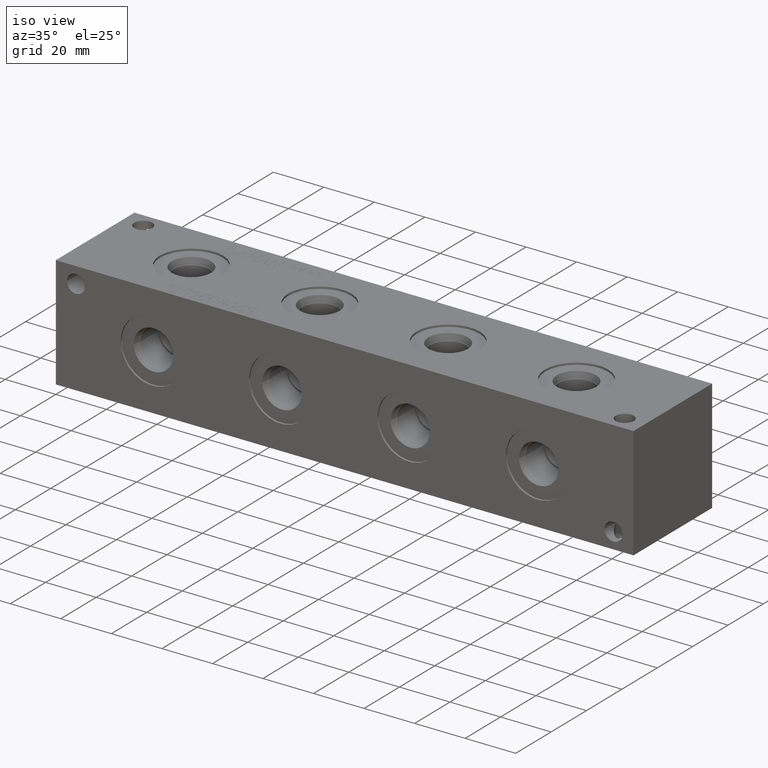
[diagram: clean part render]
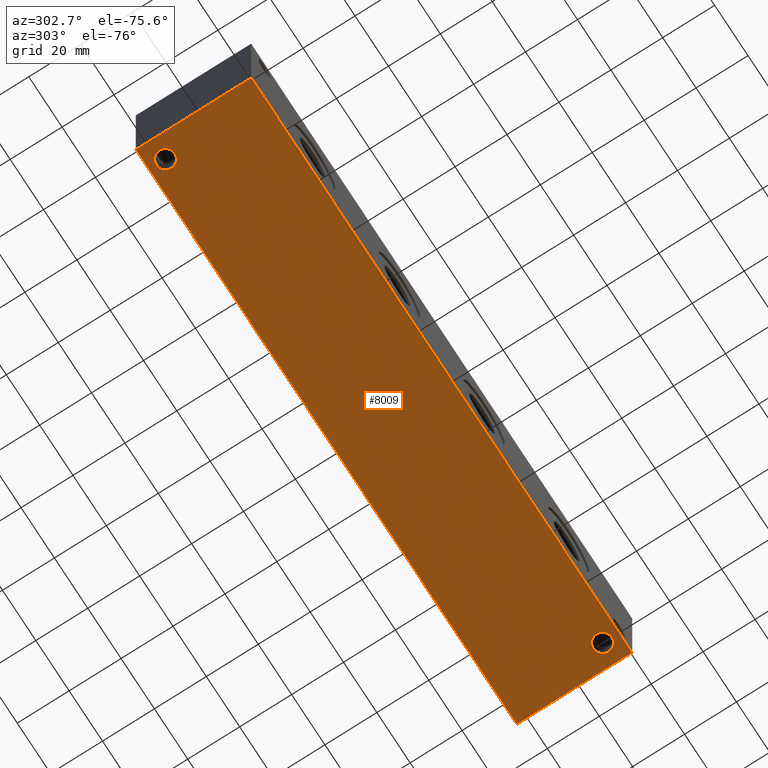
[diagram: tour spotlight — one face highlighted and labeled with its STEP entity id]
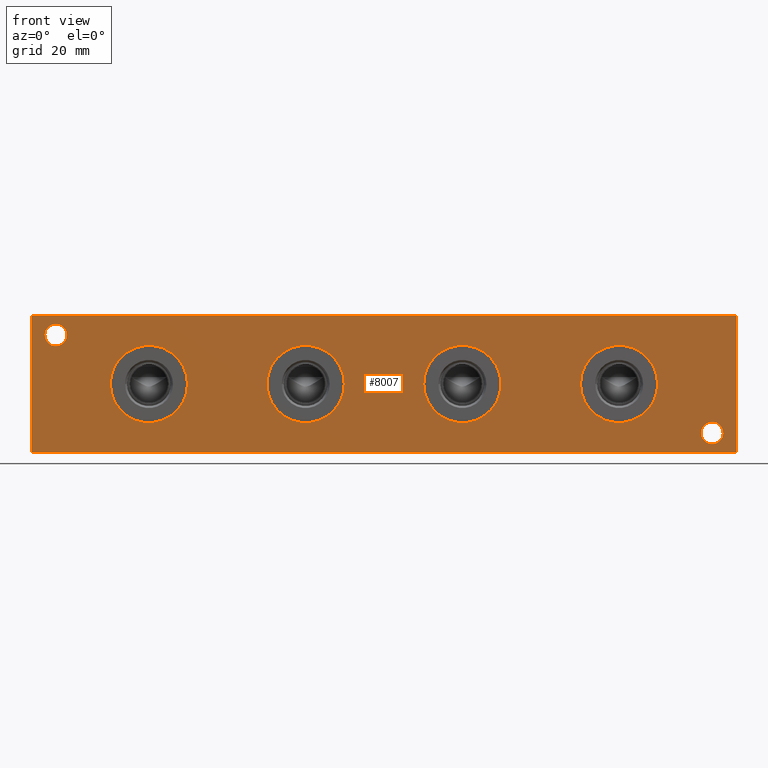
[diagram: tour spotlight — one face highlighted and labeled with its STEP entity id]
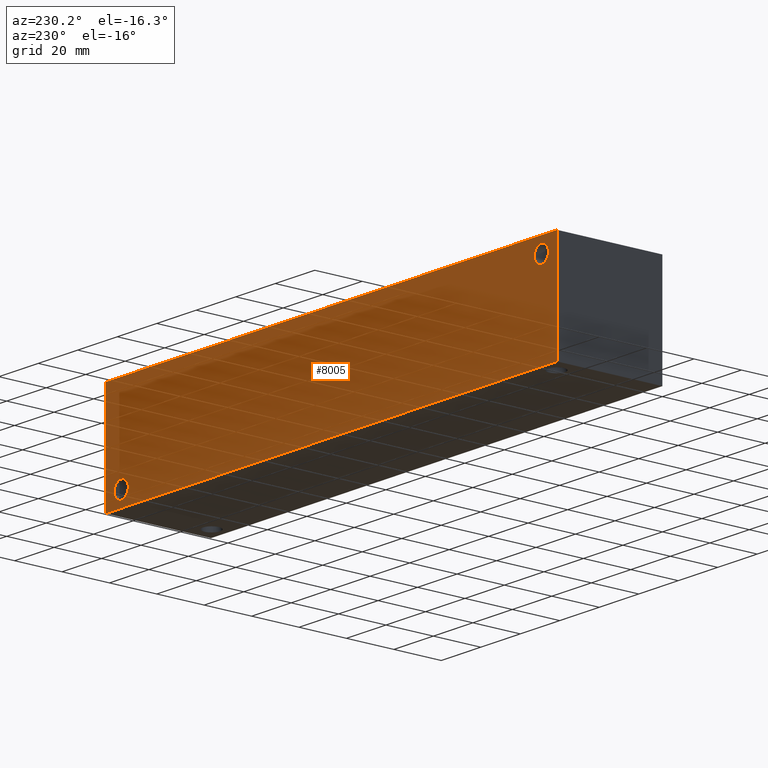
[diagram: tour spotlight — one face highlighted and labeled with its STEP entity id]
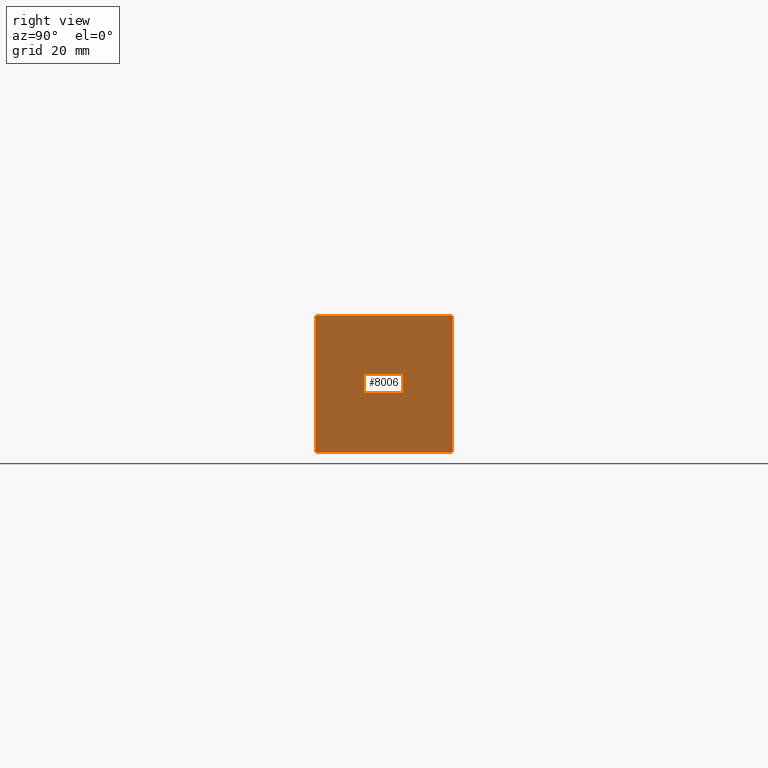
[diagram: tour spotlight — one face highlighted and labeled with its STEP entity id]
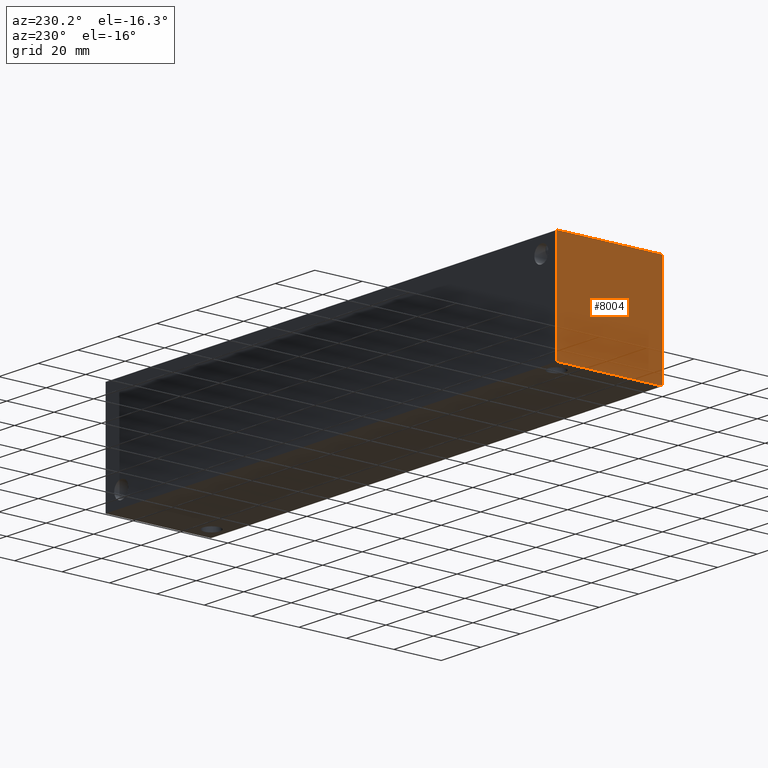
[diagram: tour spotlight — one face highlighted and labeled with its STEP entity id]
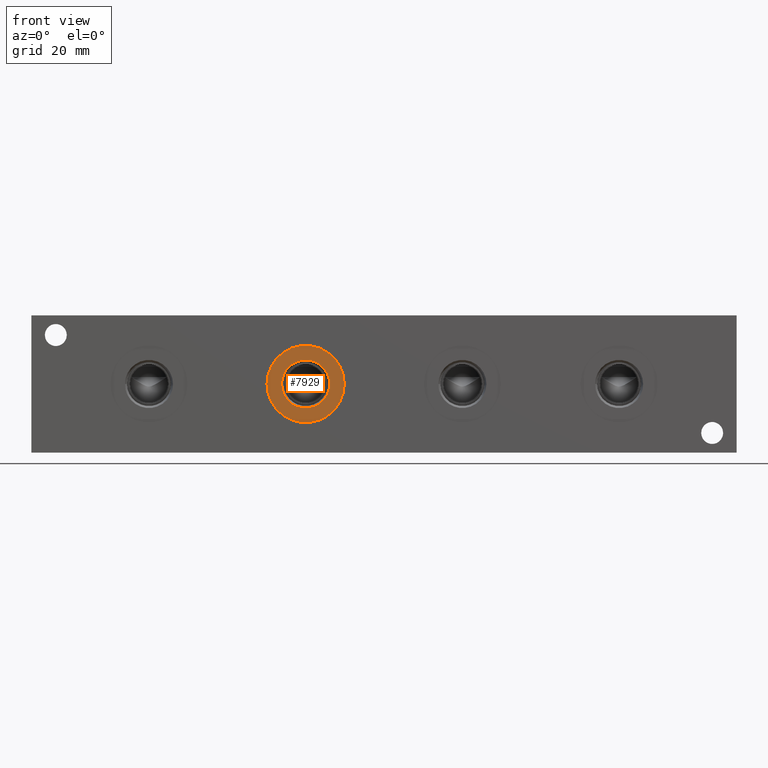
[diagram: tour spotlight — one face highlighted and labeled with its STEP entity id]
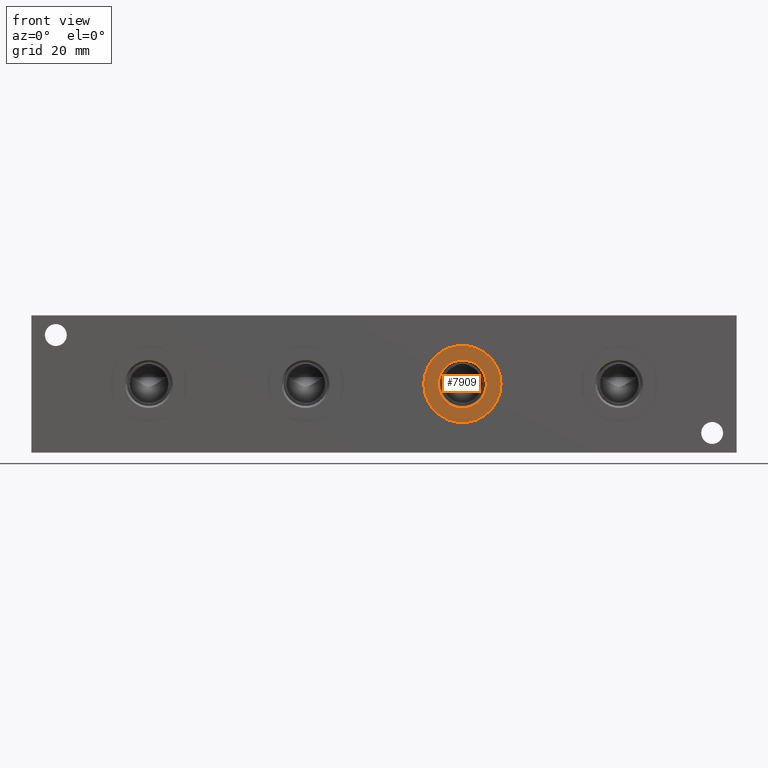
[diagram: tour spotlight — one face highlighted and labeled with its STEP entity id]
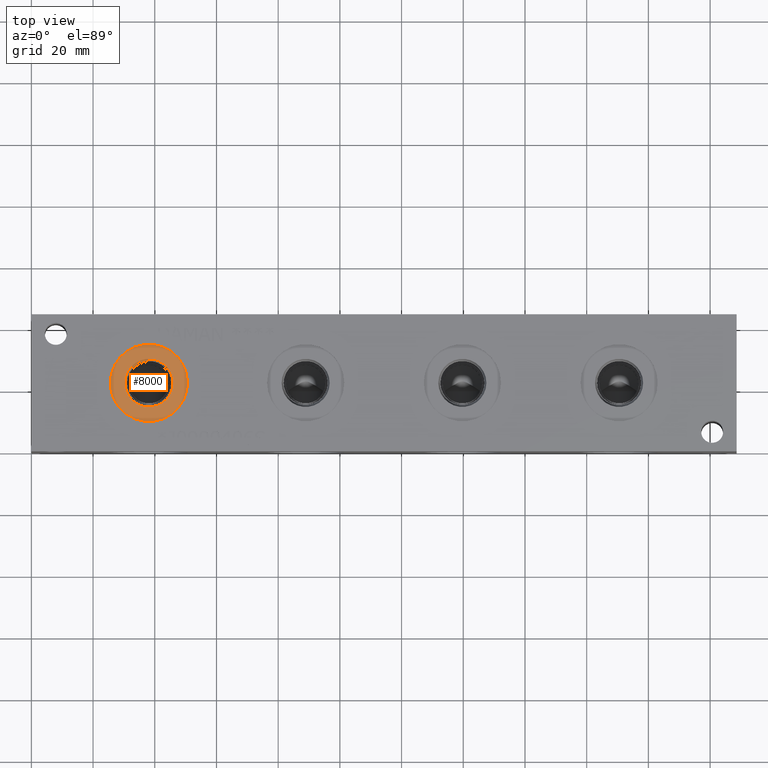
[diagram: tour spotlight — one face highlighted and labeled with its STEP entity id]
A machine part: a face-by-face anatomy tour. The part has 416 B-rep faces; the first image is the clean iso view, then the 8 largest visible faces are spotlighted one at a time (largest first), each with its STEP entity span.

Face 1 — auxiliary view, entity #8009. In plain terms, the highlighted planar face has unit normal (0, 0, 1).
Definition (entity closure, byte-faithful):
#255=CIRCLE('',#8471,3.5687);
#256=CIRCLE('',#8473,3.5687);
#328=FACE_BOUND('',#1585,.T.);
#329=FACE_BOUND('',#1586,.T.);
#1109=FACE_OUTER_BOUND('',#1584,.T.);
#1584=EDGE_LOOP('',(#7062,#7063,#7064,#7065));
#1585=EDGE_LOOP('',(#7066));
#1586=EDGE_LOOP('',(#7067));
#2272=LINE('',#14024,#2965);
#2275=LINE('',#14029,#2968);
#2277=LINE('',#14033,#2970);
#2279=LINE('',#14036,#2972);
#2965=VECTOR('',#10129,10.);
#2968=VECTOR('',#10134,10.);
#2970=VECTOR('',#10138,10.);
#2972=VECTOR('',#10142,10.);
#3699=VERTEX_POINT('',#13976);
#3700=VERTEX_POINT('',#13980);
#3713=VERTEX_POINT('',#14022);
#3714=VERTEX_POINT('',#14023);
#3715=VERTEX_POINT('',#14028);
#3716=VERTEX_POINT('',#14032);
#4805=EDGE_CURVE('',#3699,#3699,#255,.T.);
#4807=EDGE_CURVE('',#3700,#3700,#256,.T.);
#4826=EDGE_CURVE('',#3713,#3714,#2272,.T.);
#4829=EDGE_CURVE('',#3715,#3713,#2275,.T.);
#4831=EDGE_CURVE('',#3716,#3715,#2277,.T.);
#4833=EDGE_CURVE('',#3714,#3716,#2279,.T.);
#7062=ORIENTED_EDGE('',*,*,#4833,.F.);
#7063=ORIENTED_EDGE('',*,*,#4826,.F.);
#7064=ORIENTED_EDGE('',*,*,#4829,.F.);
#7065=ORIENTED_EDGE('',*,*,#4831,.F.);
#7066=ORIENTED_EDGE('',*,*,#4805,.T.);
#7067=ORIENTED_EDGE('',*,*,#4807,.T.);
#7288=PLANE('',#8499);
#8009=ADVANCED_FACE('',(#1109,#328,#329),#7288,.F.);
#8471=AXIS2_PLACEMENT_3D('',#13978,#10074,#10075);
#8473=AXIS2_PLACEMENT_3D('',#13982,#10079,#10080);
#8499=AXIS2_PLACEMENT_3D('',#14038,#10145,#10146);
#10074=DIRECTION('center_axis',(0.,0.,1.));
#10075=DIRECTION('ref_axis',(1.,0.,0.));
#10079=DIRECTION('center_axis',(0.,0.,1.));
#10080=DIRECTION('ref_axis',(1.,0.,0.));
#10129=DIRECTION('',(0.,-1.,0.));
#10134=DIRECTION('',(-1.,0.,0.));
#10138=DIRECTION('',(0.,1.,0.));
#10142=DIRECTION('',(1.,0.,0.));
#10145=DIRECTION('center_axis',(0.,0.,1.));
#10146=DIRECTION('ref_axis',(1.,0.,0.));
#13976=CARTESIAN_POINT('',(4.3561,38.1,0.));
#13978=CARTESIAN_POINT('Origin',(7.9248,38.1,0.));
#13980=CARTESIAN_POINT('',(217.1065,6.35,0.));
#13982=CARTESIAN_POINT('Origin',(220.6752,6.35,0.));
#14022=CARTESIAN_POINT('',(0.,44.45,0.));
#14023=CARTESIAN_POINT('',(0.,0.,0.));
#14024=CARTESIAN_POINT('',(0.,44.45,0.));
#14028=CARTESIAN_POINT('',(228.6,44.45,0.));
#14029=CARTESIAN_POINT('',(228.6,44.45,0.));
#14032=CARTESIAN_POINT('',(228.6,0.,0.));
#14033=CARTESIAN_POINT('',(228.6,0.,0.));
#14036=CARTESIAN_POINT('',(0.,0.,0.));
#14038=CARTESIAN_POINT('Origin',(114.3,22.225,0.));

Face 2 — front view, entity #8007. In plain terms, the highlighted planar face has unit normal (0, -1, 0).
Definition (entity closure, byte-faithful):
#125=CIRCLE('',#8236,12.5095);
#126=CIRCLE('',#8237,12.5095);
#145=CIRCLE('',#8266,12.5095);
#146=CIRCLE('',#8267,12.5095);
#165=CIRCLE('',#8296,12.5095);
#166=CIRCLE('',#8297,12.5095);
#218=CIRCLE('',#8395,3.5687);
#219=CIRCLE('',#8396,3.5687);
#221=CIRCLE('',#8404,3.5687);
#222=CIRCLE('',#8405,3.5687);
#245=CIRCLE('',#8456,12.5095);
#246=CIRCLE('',#8457,12.5095);
#322=FACE_BOUND('',#1577,.T.);
#323=FACE_BOUND('',#1578,.T.);
#324=FACE_BOUND('',#1579,.T.);
#325=FACE_BOUND('',#1580,.T.);
#326=FACE_BOUND('',#1581,.T.);
#327=FACE_BOUND('',#1582,.T.);
#1107=FACE_OUTER_BOUND('',#1576,.T.);
#1576=EDGE_LOOP('',(#7043,#7044,#7045,#7046));
#1577=EDGE_LOOP('',(#7047,#7048));
#1578=EDGE_LOOP('',(#7049,#7050));
#1579=EDGE_LOOP('',(#7051,#7052));
#1580=EDGE_LOOP('',(#7053,#7054));
#1581=EDGE_LOOP('',(#7055,#7056));
#1582=EDGE_LOOP('',(#7057,#7058));
#1835=LINE('',#12476,#2528);
#2273=LINE('',#14025,#2966);
#2278=LINE('',#14034,#2971);
#2279=LINE('',#14036,#2972);
#2528=VECTOR('',#8866,10.);
#2966=VECTOR('',#10130,10.);
#2971=VECTOR('',#10139,10.);
#2972=VECTOR('',#10142,10.);
#3281=VERTEX_POINT('',#12474);
#3282=VERTEX_POINT('',#12475);
#3559=VERTEX_POINT('',#13415);
#3560=VERTEX_POINT('',#13416);
#3579=VERTEX_POINT('',#13473);
#3580=VERTEX_POINT('',#13474);
#3599=VERTEX_POINT('',#13531);
#3600=VERTEX_POINT('',#13532);
#3652=VERTEX_POINT('',#13775);
#3653=VERTEX_POINT('',#13776);
#3657=VERTEX_POINT('',#13791);
#3658=VERTEX_POINT('',#13792);
#3689=VERTEX_POINT('',#13947);
#3690=VERTEX_POINT('',#13948);
#3714=VERTEX_POINT('',#14023);
#3716=VERTEX_POINT('',#14032);
#4179=EDGE_CURVE('',#3281,#3282,#1835,.T.);
#4588=EDGE_CURVE('',#3559,#3560,#125,.T.);
#4589=EDGE_CURVE('',#3560,#3559,#126,.T.);
#4616=EDGE_CURVE('',#3579,#3580,#145,.T.);
#4617=EDGE_CURVE('',#3580,#3579,#146,.T.);
#4644=EDGE_CURVE('',#3599,#3600,#165,.T.);
#4645=EDGE_CURVE('',#3600,#3599,#166,.T.);
#4729=EDGE_CURVE('',#3652,#3653,#218,.T.);
#4730=EDGE_CURVE('',#3653,#3652,#219,.T.);
#4738=EDGE_CURVE('',#3657,#3658,#221,.T.);
#4739=EDGE_CURVE('',#3658,#3657,#222,.T.);
#4790=EDGE_CURVE('',#3689,#3690,#245,.T.);
#4791=EDGE_CURVE('',#3690,#3689,#246,.T.);
#4827=EDGE_CURVE('',#3714,#3281,#2273,.T.);
#4832=EDGE_CURVE('',#3716,#3282,#2278,.T.);
#4833=EDGE_CURVE('',#3714,#3716,#2279,.T.);
#7043=ORIENTED_EDGE('',*,*,#4833,.T.);
#7044=ORIENTED_EDGE('',*,*,#4832,.T.);
#7045=ORIENTED_EDGE('',*,*,#4179,.F.);
#7046=ORIENTED_EDGE('',*,*,#4827,.F.);
#7047=ORIENTED_EDGE('',*,*,#4588,.T.);
#7048=ORIENTED_EDGE('',*,*,#4589,.T.);
#7049=ORIENTED_EDGE('',*,*,#4616,.T.);
#7050=ORIENTED_EDGE('',*,*,#4617,.T.);
#7051=ORIENTED_EDGE('',*,*,#4644,.T.);
#7052=ORIENTED_EDGE('',*,*,#4645,.T.);
#7053=ORIENTED_EDGE('',*,*,#4729,.T.);
#7054=ORIENTED_EDGE('',*,*,#4730,.T.);
#7055=ORIENTED_EDGE('',*,*,#4738,.T.);
#7056=ORIENTED_EDGE('',*,*,#4739,.T.);
#7057=ORIENTED_EDGE('',*,*,#4790,.T.);
#7058=ORIENTED_EDGE('',*,*,#4791,.T.);
#7286=PLANE('',#8497);
#8007=ADVANCED_FACE('',(#1107,#322,#323,#324,#325,#326,#327),#7286,.T.);
#8236=AXIS2_PLACEMENT_3D('',#13417,#9555,#9556);
#8237=AXIS2_PLACEMENT_3D('',#13418,#9557,#9558);
#8266=AXIS2_PLACEMENT_3D('',#13475,#9623,#9624);
#8267=AXIS2_PLACEMENT_3D('',#13476,#9625,#9626);
#8296=AXIS2_PLACEMENT_3D('',#13533,#9691,#9692);
#8297=AXIS2_PLACEMENT_3D('',#13534,#9693,#9694);
#8395=AXIS2_PLACEMENT_3D('',#13777,#9903,#9904);
#8396=AXIS2_PLACEMENT_3D('',#13778,#9905,#9906);
#8404=AXIS2_PLACEMENT_3D('',#13793,#9923,#9924);
#8405=AXIS2_PLACEMENT_3D('',#13794,#9925,#9926);
#8456=AXIS2_PLACEMENT_3D('',#13949,#10039,#10040);
#8457=AXIS2_PLACEMENT_3D('',#13950,#10041,#10042);
#8497=AXIS2_PLACEMENT_3D('',#14035,#10140,#10141);
#8866=DIRECTION('',(1.,0.,0.));
#9555=DIRECTION('center_axis',(0.,1.,0.));
#9556=DIRECTION('ref_axis',(1.,0.,0.));
#9557=DIRECTION('center_axis',(0.,1.,0.));
#9558=DIRECTION('ref_axis',(1.,0.,0.));
#9623=DIRECTION('center_axis',(0.,1.,0.));
#9624=DIRECTION('ref_axis',(1.,0.,0.));
#9625=DIRECTION('center_axis',(0.,1.,0.));
#9626=DIRECTION('ref_axis',(1.,0.,0.));
#9691=DIRECTION('center_axis',(0.,1.,0.));
#9692=DIRECTION('ref_axis',(1.,0.,0.));
#9693=DIRECTION('center_axis',(0.,1.,0.));
#9694=DIRECTION('ref_axis',(1.,0.,0.));
#9903=DIRECTION('center_axis',(0.,1.,0.));
#9904=DIRECTION('ref_axis',(1.,0.,0.));
#9905=DIRECTION('center_axis',(0.,1.,0.));
#9906=DIRECTION('ref_axis',(1.,0.,0.));
#9923=DIRECTION('center_axis',(0.,1.,0.));
#9924=DIRECTION('ref_axis',(1.,0.,0.));
#9925=DIRECTION('center_axis',(0.,1.,0.));
#9926=DIRECTION('ref_axis',(1.,0.,0.));
#10039=DIRECTION('center_axis',(0.,1.,0.));
#10040=DIRECTION('ref_axis',(1.,0.,0.));
#10041=DIRECTION('center_axis',(0.,1.,0.));
#10042=DIRECTION('ref_axis',(1.,0.,0.));
#10130=DIRECTION('',(0.,0.,1.));
#10139=DIRECTION('',(0.,0.,1.));
#10140=DIRECTION('center_axis',(0.,-1.,0.));
#10141=DIRECTION('ref_axis',(1.,0.,0.));
#10142=DIRECTION('',(1.,0.,0.));
#12474=CARTESIAN_POINT('',(0.,0.,44.45));
#12475=CARTESIAN_POINT('',(228.6,0.,44.45));
#12476=CARTESIAN_POINT('',(0.,0.,44.45));
#13415=CARTESIAN_POINT('',(152.2095,0.,22.225));
#13416=CARTESIAN_POINT('',(127.1905,0.,22.225));
#13417=CARTESIAN_POINT('Origin',(139.7,0.,22.225));
#13418=CARTESIAN_POINT('Origin',(139.7,0.,22.225));
#13473=CARTESIAN_POINT('',(203.0095,0.,22.225));
#13474=CARTESIAN_POINT('',(177.9905,0.,22.225));
#13475=CARTESIAN_POINT('Origin',(190.5,0.,22.225));
#13476=CARTESIAN_POINT('Origin',(190.5,0.,22.225));
#13531=CARTESIAN_POINT('',(101.4095,0.,22.225));
#13532=CARTESIAN_POINT('',(76.3905,0.,22.225));
#13533=CARTESIAN_POINT('Origin',(88.9,0.,22.225));
#13534=CARTESIAN_POINT('Origin',(88.9,0.,22.225));
#13775=CARTESIAN_POINT('',(11.4935,0.,38.1));
#13776=CARTESIAN_POINT('',(4.3561,-3.5527136788005E-14,38.1));
#13777=CARTESIAN_POINT('Origin',(7.9248,0.,38.1));
#13778=CARTESIAN_POINT('Origin',(7.9248,0.,38.1));
#13791=CARTESIAN_POINT('',(224.2439,0.,6.35));
#13792=CARTESIAN_POINT('',(217.1065,-3.5527136788005E-14,6.35));
#13793=CARTESIAN_POINT('Origin',(220.6752,0.,6.35));
#13794=CARTESIAN_POINT('Origin',(220.6752,0.,6.35));
#13947=CARTESIAN_POINT('',(50.6095,0.,22.225));
#13948=CARTESIAN_POINT('',(25.5905,0.,22.225));
#13949=CARTESIAN_POINT('Origin',(38.1,0.,22.225));
#13950=CARTESIAN_POINT('Origin',(38.1,0.,22.225));
#14023=CARTESIAN_POINT('',(0.,0.,0.));
#14025=CARTESIAN_POINT('',(0.,0.,0.));
#14032=CARTESIAN_POINT('',(228.6,0.,0.));
#14034=CARTESIAN_POINT('',(228.6,0.,0.));
#14035=CARTESIAN_POINT('Origin',(0.,0.,0.));
#14036=CARTESIAN_POINT('',(0.,0.,0.));

Face 3 — auxiliary view, entity #8005. In plain terms, the highlighted planar face has unit normal (0, 1, 0).
Definition (entity closure, byte-faithful):
#220=CIRCLE('',#8402,3.5687);
#223=CIRCLE('',#8411,3.5687);
#320=FACE_BOUND('',#1573,.T.);
#321=FACE_BOUND('',#1574,.T.);
#1105=FACE_OUTER_BOUND('',#1572,.T.);
#1572=EDGE_LOOP('',(#7033,#7034,#7035,#7036));
#1573=EDGE_LOOP('',(#7037));
#1574=EDGE_LOOP('',(#7038));
#1837=LINE('',#12480,#2530);
#2274=LINE('',#14026,#2967);
#2275=LINE('',#14029,#2968);
#2276=LINE('',#14030,#2969);
#2530=VECTOR('',#8868,10.);
#2967=VECTOR('',#10131,10.);
#2968=VECTOR('',#10134,10.);
#2969=VECTOR('',#10135,10.);
#3283=VERTEX_POINT('',#12477);
#3284=VERTEX_POINT('',#12479);
#3656=VERTEX_POINT('',#13787);
#3661=VERTEX_POINT('',#13803);
#3713=VERTEX_POINT('',#14022);
#3715=VERTEX_POINT('',#14028);
#4181=EDGE_CURVE('',#3283,#3284,#1837,.T.);
#4737=EDGE_CURVE('',#3656,#3656,#220,.T.);
#4746=EDGE_CURVE('',#3661,#3661,#223,.T.);
#4828=EDGE_CURVE('',#3713,#3284,#2274,.T.);
#4829=EDGE_CURVE('',#3715,#3713,#2275,.T.);
#4830=EDGE_CURVE('',#3715,#3283,#2276,.T.);
#7033=ORIENTED_EDGE('',*,*,#4829,.T.);
#7034=ORIENTED_EDGE('',*,*,#4828,.T.);
#7035=ORIENTED_EDGE('',*,*,#4181,.F.);
#7036=ORIENTED_EDGE('',*,*,#4830,.F.);
#7037=ORIENTED_EDGE('',*,*,#4737,.T.);
#7038=ORIENTED_EDGE('',*,*,#4746,.T.);
#7284=PLANE('',#8495);
#8005=ADVANCED_FACE('',(#1105,#320,#321),#7284,.T.);
#8402=AXIS2_PLACEMENT_3D('',#13789,#9919,#9920);
#8411=AXIS2_PLACEMENT_3D('',#13805,#9939,#9940);
#8495=AXIS2_PLACEMENT_3D('',#14027,#10132,#10133);
#8868=DIRECTION('',(-1.,0.,0.));
#9919=DIRECTION('center_axis',(0.,-1.,0.));
#9920=DIRECTION('ref_axis',(1.,0.,0.));
#9939=DIRECTION('center_axis',(0.,-1.,0.));
#9940=DIRECTION('ref_axis',(1.,0.,0.));
#10131=DIRECTION('',(0.,0.,1.));
#10132=DIRECTION('center_axis',(0.,1.,0.));
#10133=DIRECTION('ref_axis',(-1.,0.,0.));
#10134=DIRECTION('',(-1.,0.,0.));
#10135=DIRECTION('',(0.,0.,1.));
#12477=CARTESIAN_POINT('',(228.6,44.45,44.45));
#12479=CARTESIAN_POINT('',(0.,44.45,44.45));
#12480=CARTESIAN_POINT('',(228.6,44.45,44.45));
#13787=CARTESIAN_POINT('',(4.3561,44.45,38.1));
#13789=CARTESIAN_POINT('Origin',(7.9248,44.45,38.1));
#13803=CARTESIAN_POINT('',(217.1065,44.45,6.35));
#13805=CARTESIAN_POINT('Origin',(220.6752,44.45,6.35));
#14022=CARTESIAN_POINT('',(0.,44.45,0.));
#14026=CARTESIAN_POINT('',(0.,44.45,0.));
#14027=CARTESIAN_POINT('Origin',(228.6,44.45,0.));
#14028=CARTESIAN_POINT('',(228.6,44.45,0.));
#14029=CARTESIAN_POINT('',(228.6,44.45,0.));
#14030=CARTESIAN_POINT('',(228.6,44.45,0.));

Face 4 — right view, entity #8006. In plain terms, the highlighted planar face has unit normal (1, 0, 0).
Definition (entity closure, byte-faithful):
#1106=FACE_OUTER_BOUND('',#1575,.T.);
#1575=EDGE_LOOP('',(#7039,#7040,#7041,#7042));
#1836=LINE('',#12478,#2529);
#2276=LINE('',#14030,#2969);
#2277=LINE('',#14033,#2970);
#2278=LINE('',#14034,#2971);
#2529=VECTOR('',#8867,10.);
#2969=VECTOR('',#10135,10.);
#2970=VECTOR('',#10138,10.);
#2971=VECTOR('',#10139,10.);
#3282=VERTEX_POINT('',#12475);
#3283=VERTEX_POINT('',#12477);
#3715=VERTEX_POINT('',#14028);
#3716=VERTEX_POINT('',#14032);
#4180=EDGE_CURVE('',#3282,#3283,#1836,.T.);
#4830=EDGE_CURVE('',#3715,#3283,#2276,.T.);
#4831=EDGE_CURVE('',#3716,#3715,#2277,.T.);
#4832=EDGE_CURVE('',#3716,#3282,#2278,.T.);
#7039=ORIENTED_EDGE('',*,*,#4831,.T.);
#7040=ORIENTED_EDGE('',*,*,#4830,.T.);
#7041=ORIENTED_EDGE('',*,*,#4180,.F.);
#7042=ORIENTED_EDGE('',*,*,#4832,.F.);
#7285=PLANE('',#8496);
#8006=ADVANCED_FACE('',(#1106),#7285,.T.);
#8496=AXIS2_PLACEMENT_3D('',#14031,#10136,#10137);
#8867=DIRECTION('',(0.,1.,0.));
#10135=DIRECTION('',(0.,0.,1.));
#10136=DIRECTION('center_axis',(1.,0.,0.));
#10137=DIRECTION('ref_axis',(0.,1.,0.));
#10138=DIRECTION('',(0.,1.,0.));
#10139=DIRECTION('',(0.,0.,1.));
#12475=CARTESIAN_POINT('',(228.6,0.,44.45));
#12477=CARTESIAN_POINT('',(228.6,44.45,44.45));
#12478=CARTESIAN_POINT('',(228.6,0.,44.45));
#14028=CARTESIAN_POINT('',(228.6,44.45,0.));
#14030=CARTESIAN_POINT('',(228.6,44.45,0.));
#14031=CARTESIAN_POINT('Origin',(228.6,0.,0.));
#14032=CARTESIAN_POINT('',(228.6,0.,0.));
#14033=CARTESIAN_POINT('',(228.6,0.,0.));
#14034=CARTESIAN_POINT('',(228.6,0.,0.));

Face 5 — auxiliary view, entity #8004. In plain terms, the highlighted planar face has unit normal (-1, 0, 0).
Definition (entity closure, byte-faithful):
#1104=FACE_OUTER_BOUND('',#1571,.T.);
#1571=EDGE_LOOP('',(#7029,#7030,#7031,#7032));
#1838=LINE('',#12481,#2531);
#2272=LINE('',#14024,#2965);
#2273=LINE('',#14025,#2966);
#2274=LINE('',#14026,#2967);
#2531=VECTOR('',#8869,10.);
#2965=VECTOR('',#10129,10.);
#2966=VECTOR('',#10130,10.);
#2967=VECTOR('',#10131,10.);
#3281=VERTEX_POINT('',#12474);
#3284=VERTEX_POINT('',#12479);
#3713=VERTEX_POINT('',#14022);
#3714=VERTEX_POINT('',#14023);
#4182=EDGE_CURVE('',#3284,#3281,#1838,.T.);
#4826=EDGE_CURVE('',#3713,#3714,#2272,.T.);
#4827=EDGE_CURVE('',#3714,#3281,#2273,.T.);
#4828=EDGE_CURVE('',#3713,#3284,#2274,.T.);
#7029=ORIENTED_EDGE('',*,*,#4826,.T.);
#7030=ORIENTED_EDGE('',*,*,#4827,.T.);
#7031=ORIENTED_EDGE('',*,*,#4182,.F.);
#7032=ORIENTED_EDGE('',*,*,#4828,.F.);
#7283=PLANE('',#8494);
#8004=ADVANCED_FACE('',(#1104),#7283,.T.);
#8494=AXIS2_PLACEMENT_3D('',#14021,#10127,#10128);
#8869=DIRECTION('',(0.,-1.,0.));
#10127=DIRECTION('center_axis',(-1.,0.,0.));
#10128=DIRECTION('ref_axis',(0.,-1.,0.));
#10129=DIRECTION('',(0.,-1.,0.));
#10130=DIRECTION('',(0.,0.,1.));
#10131=DIRECTION('',(0.,0.,1.));
#12474=CARTESIAN_POINT('',(0.,0.,44.45));
#12479=CARTESIAN_POINT('',(0.,44.45,44.45));
#12481=CARTESIAN_POINT('',(0.,44.45,44.45));
#14021=CARTESIAN_POINT('Origin',(0.,44.45,0.));
#14022=CARTESIAN_POINT('',(0.,44.45,0.));
#14023=CARTESIAN_POINT('',(0.,0.,0.));
#14024=CARTESIAN_POINT('',(0.,44.45,0.));
#14025=CARTESIAN_POINT('',(0.,0.,0.));
#14026=CARTESIAN_POINT('',(0.,44.45,0.));

Face 6 — front view, entity #7929. In plain terms, the highlighted planar face has unit normal (0, 1, 0).
Definition (entity closure, byte-faithful):
#167=CIRCLE('',#8298,12.5095);
#168=CIRCLE('',#8299,12.5095);
#169=CIRCLE('',#8301,7.79780000000001);
#170=CIRCLE('',#8302,7.79780000000001);
#308=FACE_BOUND('',#1485,.T.);
#1029=FACE_OUTER_BOUND('',#1484,.T.);
#1484=EDGE_LOOP('',(#6671,#6672));
#1485=EDGE_LOOP('',(#6673,#6674));
#3601=VERTEX_POINT('',#13535);
#3602=VERTEX_POINT('',#13537);
#3603=VERTEX_POINT('',#13541);
#3604=VERTEX_POINT('',#13542);
#4647=EDGE_CURVE('',#3601,#3602,#167,.T.);
#4648=EDGE_CURVE('',#3602,#3601,#168,.T.);
#4649=EDGE_CURVE('',#3603,#3604,#169,.T.);
#4650=EDGE_CURVE('',#3604,#3603,#170,.T.);
#6671=ORIENTED_EDGE('',*,*,#4648,.F.);
#6672=ORIENTED_EDGE('',*,*,#4647,.F.);
#6673=ORIENTED_EDGE('',*,*,#4649,.T.);
#6674=ORIENTED_EDGE('',*,*,#4650,.T.);
#7271=PLANE('',#8300);
#7929=ADVANCED_FACE('',(#1029,#308),#7271,.F.);
#8298=AXIS2_PLACEMENT_3D('',#13538,#9696,#9697);
#8299=AXIS2_PLACEMENT_3D('',#13539,#9698,#9699);
#8300=AXIS2_PLACEMENT_3D('',#13540,#9700,#9701);
#8301=AXIS2_PLACEMENT_3D('',#13543,#9702,#9703);
#8302=AXIS2_PLACEMENT_3D('',#13544,#9704,#9705);
#9696=DIRECTION('center_axis',(0.,1.,0.));
#9697=DIRECTION('ref_axis',(1.,0.,0.));
#9698=DIRECTION('center_axis',(0.,1.,0.));
#9699=DIRECTION('ref_axis',(1.,0.,0.));
#9700=DIRECTION('center_axis',(0.,1.,0.));
#9701=DIRECTION('ref_axis',(0.,0.,1.));
#9702=DIRECTION('center_axis',(0.,1.,0.));
#9703=DIRECTION('ref_axis',(1.,0.,0.));
#9704=DIRECTION('center_axis',(0.,1.,0.));
#9705=DIRECTION('ref_axis',(1.,0.,0.));
#13535=CARTESIAN_POINT('',(76.3905,0.7874,22.225));
#13537=CARTESIAN_POINT('',(101.4095,0.7874,22.225));
#13538=CARTESIAN_POINT('Origin',(88.9,0.7874,22.225));
#13539=CARTESIAN_POINT('Origin',(88.9,0.7874,22.225));
#13540=CARTESIAN_POINT('Origin',(96.6978,0.7874,22.225));
#13541=CARTESIAN_POINT('',(96.6978,0.7874,22.225));
#13542=CARTESIAN_POINT('',(81.1022,0.787399999999998,22.225));
#13543=CARTESIAN_POINT('Origin',(88.9,0.7874,22.225));
#13544=CARTESIAN_POINT('Origin',(88.9,0.7874,22.225));

Face 7 — front view, entity #7909. In plain terms, the highlighted planar face has unit normal (0, 1, 0).
Definition (entity closure, byte-faithful):
#127=CIRCLE('',#8238,12.5095);
#128=CIRCLE('',#8239,12.5095);
#129=CIRCLE('',#8241,7.79780000000001);
#130=CIRCLE('',#8242,7.79780000000001);
#304=FACE_BOUND('',#1461,.T.);
#1009=FACE_OUTER_BOUND('',#1460,.T.);
#1460=EDGE_LOOP('',(#6563,#6564));
#1461=EDGE_LOOP('',(#6565,#6566));
#3561=VERTEX_POINT('',#13419);
#3562=VERTEX_POINT('',#13421);
#3563=VERTEX_POINT('',#13425);
#3564=VERTEX_POINT('',#13426);
#4591=EDGE_CURVE('',#3561,#3562,#127,.T.);
#4592=EDGE_CURVE('',#3562,#3561,#128,.T.);
#4593=EDGE_CURVE('',#3563,#3564,#129,.T.);
#4594=EDGE_CURVE('',#3564,#3563,#130,.T.);
#6563=ORIENTED_EDGE('',*,*,#4592,.F.);
#6564=ORIENTED_EDGE('',*,*,#4591,.F.);
#6565=ORIENTED_EDGE('',*,*,#4593,.T.);
#6566=ORIENTED_EDGE('',*,*,#4594,.T.);
#7267=PLANE('',#8240);
#7909=ADVANCED_FACE('',(#1009,#304),#7267,.F.);
#8238=AXIS2_PLACEMENT_3D('',#13422,#9560,#9561);
#8239=AXIS2_PLACEMENT_3D('',#13423,#9562,#9563);
#8240=AXIS2_PLACEMENT_3D('',#13424,#9564,#9565);
#8241=AXIS2_PLACEMENT_3D('',#13427,#9566,#9567);
#8242=AXIS2_PLACEMENT_3D('',#13428,#9568,#9569);
#9560=DIRECTION('center_axis',(0.,1.,0.));
#9561=DIRECTION('ref_axis',(1.,0.,0.));
#9562=DIRECTION('center_axis',(0.,1.,0.));
#9563=DIRECTION('ref_axis',(1.,0.,0.));
#9564=DIRECTION('center_axis',(0.,1.,0.));
#9565=DIRECTION('ref_axis',(0.,0.,1.));
#9566=DIRECTION('center_axis',(0.,1.,0.));
#9567=DIRECTION('ref_axis',(1.,0.,0.));
#9568=DIRECTION('center_axis',(0.,1.,0.));
#9569=DIRECTION('ref_axis',(1.,0.,0.));
#13419=CARTESIAN_POINT('',(127.1905,0.7874,22.225));
#13421=CARTESIAN_POINT('',(152.2095,0.7874,22.225));
#13422=CARTESIAN_POINT('Origin',(139.7,0.7874,22.225));
#13423=CARTESIAN_POINT('Origin',(139.7,0.7874,22.225));
#13424=CARTESIAN_POINT('Origin',(147.4978,0.7874,22.225));
#13425=CARTESIAN_POINT('',(147.4978,0.7874,22.225));
#13426=CARTESIAN_POINT('',(131.9022,0.787399999999998,22.225));
#13427=CARTESIAN_POINT('Origin',(139.7,0.7874,22.225));
#13428=CARTESIAN_POINT('Origin',(139.7,0.7874,22.225));

Face 8 — top view, entity #8000. In plain terms, the highlighted planar face has unit normal (0, 0, -1).
Definition (entity closure, byte-faithful):
#261=CIRCLE('',#8482,12.5095);
#262=CIRCLE('',#8483,12.5095);
#263=CIRCLE('',#8485,7.7978);
#264=CIRCLE('',#8486,7.7978);
#319=FACE_BOUND('',#1567,.T.);
#1100=FACE_OUTER_BOUND('',#1566,.T.);
#1566=EDGE_LOOP('',(#7008,#7009));
#1567=EDGE_LOOP('',(#7010,#7011));
#3705=VERTEX_POINT('',#13997);
#3706=VERTEX_POINT('',#13999);
#3707=VERTEX_POINT('',#14003);
#3708=VERTEX_POINT('',#14004);
#4815=EDGE_CURVE('',#3705,#3706,#261,.T.);
#4816=EDGE_CURVE('',#3706,#3705,#262,.T.);
#4817=EDGE_CURVE('',#3707,#3708,#263,.T.);
#4818=EDGE_CURVE('',#3708,#3707,#264,.T.);
#7008=ORIENTED_EDGE('',*,*,#4816,.F.);
#7009=ORIENTED_EDGE('',*,*,#4815,.F.);
#7010=ORIENTED_EDGE('',*,*,#4817,.T.);
#7011=ORIENTED_EDGE('',*,*,#4818,.T.);
#7282=PLANE('',#8484);
#8000=ADVANCED_FACE('',(#1100,#319),#7282,.F.);
#8482=AXIS2_PLACEMENT_3D('',#14000,#10100,#10101);
#8483=AXIS2_PLACEMENT_3D('',#14001,#10102,#10103);
#8484=AXIS2_PLACEMENT_3D('',#14002,#10104,#10105);
#8485=AXIS2_PLACEMENT_3D('',#14005,#10106,#10107);
#8486=AXIS2_PLACEMENT_3D('',#14006,#10108,#10109);
#10100=DIRECTION('center_axis',(0.,0.,-1.));
#10101=DIRECTION('ref_axis',(1.,0.,0.));
#10102=DIRECTION('center_axis',(0.,0.,-1.));
#10103=DIRECTION('ref_axis',(1.,0.,0.));
#10104=DIRECTION('center_axis',(0.,0.,-1.));
#10105=DIRECTION('ref_axis',(-1.,0.,0.));
#10106=DIRECTION('center_axis',(0.,0.,-1.));
#10107=DIRECTION('ref_axis',(1.,0.,0.));
#10108=DIRECTION('center_axis',(0.,0.,-1.));
#10109=DIRECTION('ref_axis',(1.,0.,0.));
#13997=CARTESIAN_POINT('',(25.5905,22.225,43.6626));
#13999=CARTESIAN_POINT('',(50.6095,22.225,43.6626));
#14000=CARTESIAN_POINT('Origin',(38.1,22.225,43.6626));
#14001=CARTESIAN_POINT('Origin',(38.1,22.225,43.6626));
#14002=CARTESIAN_POINT('Origin',(45.8978,22.225,43.6626));
#14003=CARTESIAN_POINT('',(45.8978,22.225,43.6626));
#14004=CARTESIAN_POINT('',(30.3022,22.225,43.6626));
#14005=CARTESIAN_POINT('Origin',(38.1,22.225,43.6626));
#14006=CARTESIAN_POINT('Origin',(38.1,22.225,43.6626));